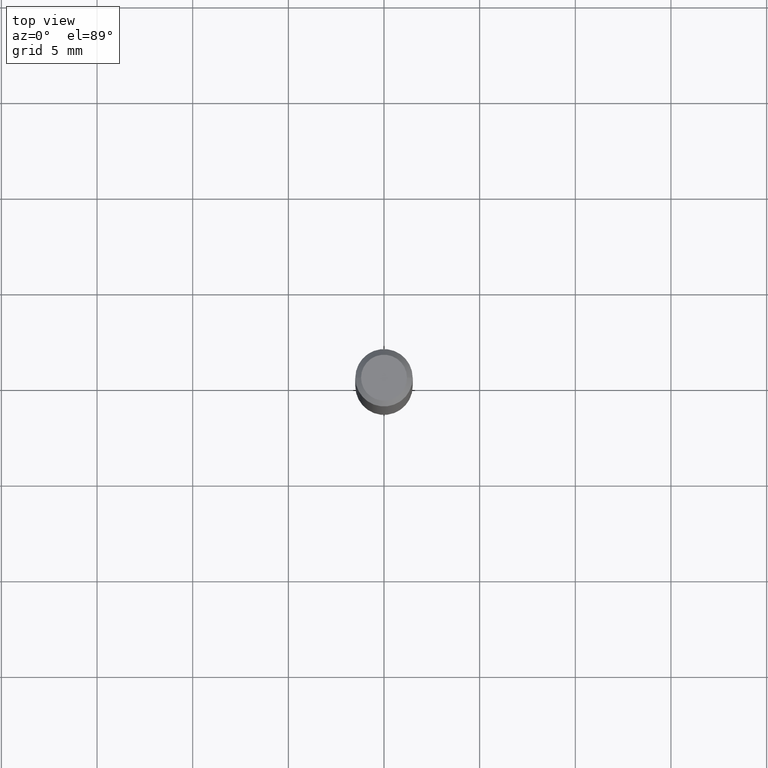
[diagram: clean part render]
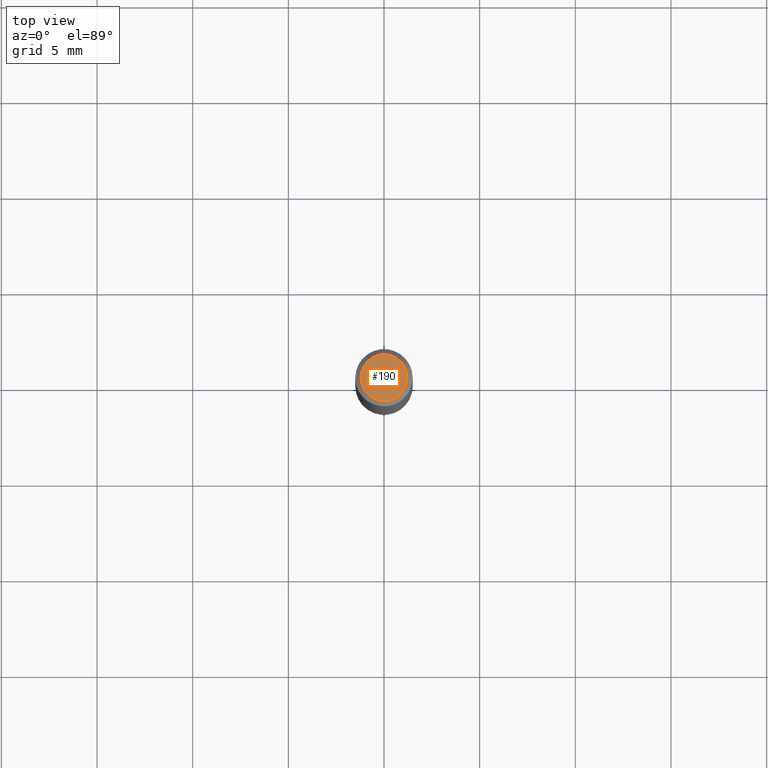
[diagram: same view with one face highlighted and labeled with its STEP entity id]
A machine part, top view. The second image highlights one B-rep face of the part: STEP entity #190.
In plain terms, the highlighted planar face has unit normal (0, -0, -1).
Its self-contained STEP definition (entity closure, byte-faithful):
#40 = DIRECTION ( 'NONE',  ( 2.438088387897960049E-29, -3.491481338843145188E-15, -1.000000000000000000 ) ) ;
#48 = VERTEX_POINT ( 'NONE', #178 ) ;
#61 = AXIS2_PLACEMENT_3D ( 'NONE', #135, #435, #89 ) ;
#89 = DIRECTION ( 'NONE',  ( 1.000000000000000000, -6.982962677686266711E-15, 4.876185090822587894E-29 ) ) ;
#90 = PLANE ( 'NONE',  #471 ) ;
#123 = ORIENTED_EDGE ( 'NONE', *, *, #230, .T. ) ;
#135 = CARTESIAN_POINT ( 'NONE',  ( 8.265746106709734507E-48, -1.180129479067563789E-33, -3.380025165646692144E-19 ) ) ;
#178 = CARTESIAN_POINT ( 'NONE',  ( 0.04724000000000000421, -3.852183633974369345E-16, -3.380025165621689721E-19 ) ) ;
#190 = ADVANCED_FACE ( 'NONE', ( #321 ), #90, .F. ) ;
#230 = EDGE_CURVE ( 'NONE', #360, #48, #463, .T. ) ;
#254 = DIRECTION ( 'NONE',  ( -1.000000000000000000, 6.982962677686265922E-15, -4.876176775795935793E-29 ) ) ;
#264 = DIRECTION ( 'NONE',  ( 1.000000000000000000, -6.982962677686266711E-15, 4.876185090822587894E-29 ) ) ;
#307 = CARTESIAN_POINT ( 'NONE',  ( 8.265746106709734507E-48, -1.180129479067563789E-33, -3.380025165646692144E-19 ) ) ;
#321 = FACE_OUTER_BOUND ( 'NONE', #325, .T. ) ;
#325 = EDGE_LOOP ( 'NONE', ( #123, #364 ) ) ;
#342 = EDGE_CURVE ( 'NONE', #48, #360, #443, .T. ) ;
#348 = AXIS2_PLACEMENT_3D ( 'NONE', #307, #445, #264 ) ;
#360 = VERTEX_POINT ( 'NONE', #458 ) ;
#364 = ORIENTED_EDGE ( 'NONE', *, *, #342, .T. ) ;
#417 = CARTESIAN_POINT ( 'NONE',  ( 4.132873053354867254E-48, -5.900647395337818946E-34, -1.690012582823346072E-19 ) ) ;
#435 = DIRECTION ( 'NONE',  ( -2.445468806185136597E-29, 3.491481338843145583E-15, 1.000000000000000000 ) ) ;
#443 = CIRCLE ( 'NONE', #61, 0.04724000000000000421 ) ;
#445 = DIRECTION ( 'NONE',  ( -2.445468806185136597E-29, 3.491481338843145583E-15, 1.000000000000000000 ) ) ;
#458 = CARTESIAN_POINT ( 'NONE',  ( -0.04724000000000000421, 3.504923541997677355E-16, -3.380025165670481712E-19 ) ) ;
#463 = CIRCLE ( 'NONE', #348, 0.04724000000000000421 ) ;
#471 = AXIS2_PLACEMENT_3D ( 'NONE', #417, #40, #254 ) ;